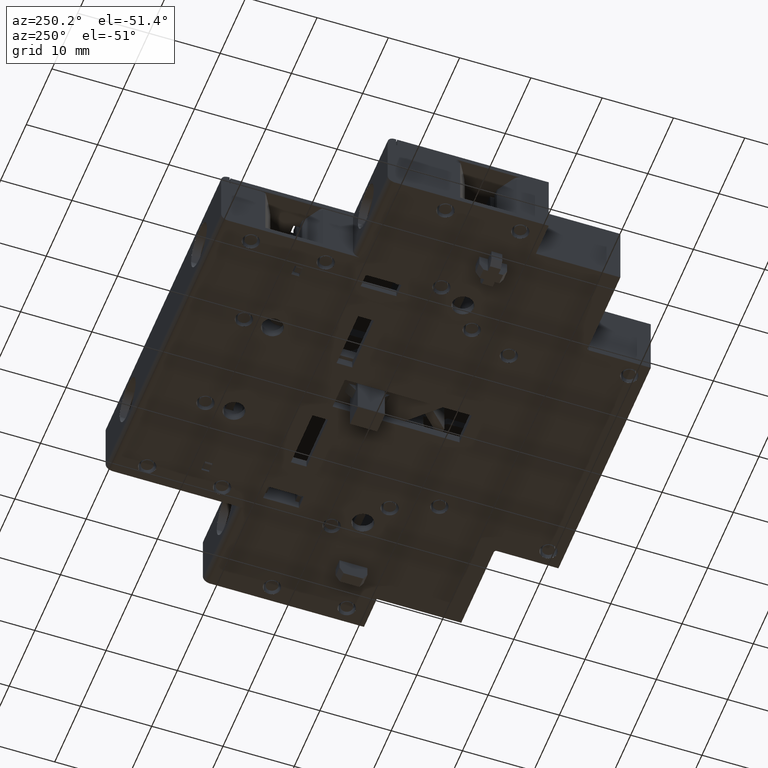
[diagram: clean part render]
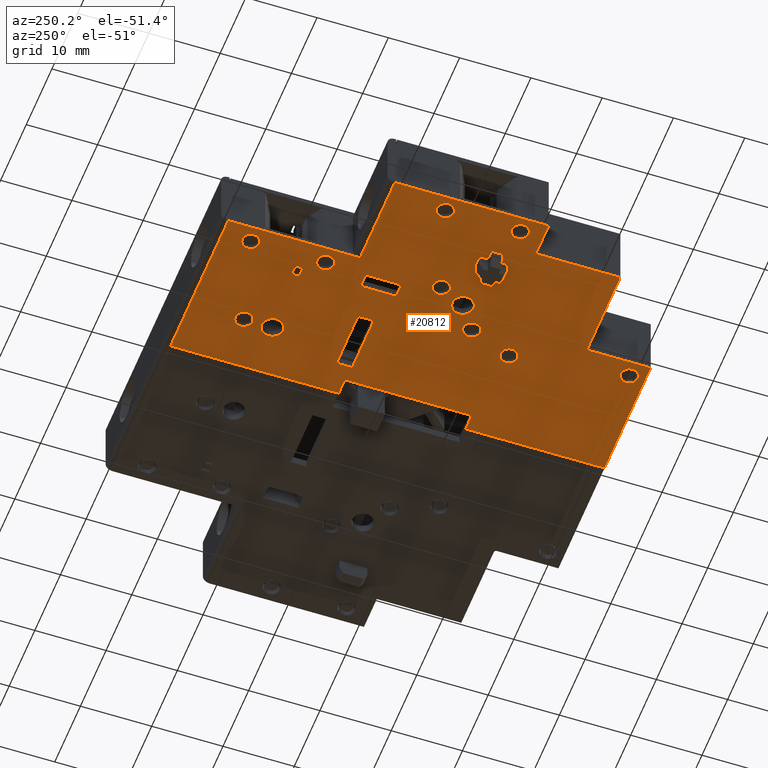
[diagram: same view with one face highlighted and labeled with its STEP entity id]
A machine part, auxiliary view. The second image highlights one B-rep face of the part: STEP entity #20812.
In plain terms, the highlighted planar face has unit normal (0, 0, 1).
Its self-contained STEP definition (entity closure, byte-faithful):
#9272=DIRECTION('',(0.E0,-1.E0,0.E0));
#9273=VECTOR('',#9272,2.16E1);
#9274=CARTESIAN_POINT('',(-2.311889453222E1,5.941970650536E1,4.6E0));
#9275=LINE('',#9274,#9273);
#9276=DIRECTION('',(1.E0,0.E0,0.E0));
#9277=VECTOR('',#9276,5.E0);
#9278=CARTESIAN_POINT('',(-2.311889453222E1,3.781970650536E1,4.6E0));
#9279=LINE('',#9278,#9277);
#9280=CARTESIAN_POINT('',(-5.418894532221E0,2.566970650536E1,4.6E0));
#9281=DIRECTION('',(0.E0,0.E0,-1.E0));
#9282=DIRECTION('',(3.330669073864E-12,1.E0,0.E0));
#9283=AXIS2_PLACEMENT_3D('',#9280,#9281,#9282);
#9285=DIRECTION('',(0.E0,1.E0,0.E0));
#9286=VECTOR('',#9285,1.95E1);
#9287=CARTESIAN_POINT('',(1.288110546778E1,1.701970650536E1,4.6E0));
#9288=LINE('',#9287,#9286);
#9289=DIRECTION('',(0.E0,1.E0,4.366942800545E-12));
#9290=VECTOR('',#9289,2.359998462014E1);
#9291=CARTESIAN_POINT('',(1.288110546778E1,5.431970650536E1,4.6E0));
#9292=LINE('',#9291,#9290);
#9293=CARTESIAN_POINT('',(-8.517706743856E0,7.397121892901E1,4.6E0));
#9294=CARTESIAN_POINT('',(-8.505902374194E0,7.411474803250E1,4.6E0));
#9295=CARTESIAN_POINT('',(-8.450393029536E0,7.437618904207E1,4.6E0));
#9296=CARTESIAN_POINT('',(-8.260730949054E0,7.469209557380E1,4.6E0));
#9297=CARTESIAN_POINT('',(-7.996759547538E0,7.492995729403E1,4.6E0));
#9298=CARTESIAN_POINT('',(-7.683642666329E0,7.508099753615E1,4.6E0));
#9299=CARTESIAN_POINT('',(-7.321782853968E0,7.513883490895E1,4.6E0));
#9300=CARTESIAN_POINT('',(-6.951008153898E0,7.508040155394E1,4.6E0));
#9301=CARTESIAN_POINT('',(-6.631105789637E0,7.492499653397E1,4.6E0));
#9302=CARTESIAN_POINT('',(-6.354166379487E0,7.466083149106E1,4.6E0));
#9303=CARTESIAN_POINT('',(-6.158032698492E0,7.431245875203E1,4.6E0));
#9304=CARTESIAN_POINT('',(-6.118780695691E0,7.405638947797E1,4.6E0));
#9305=CARTESIAN_POINT('',(-6.118894532220E0,7.391970650536E1,4.6E0));
#9307=CARTESIAN_POINT('',(-6.118894532220E0,7.391970650536E1,4.6E0));
#9308=CARTESIAN_POINT('',(-6.118009376165E0,7.378947619976E1,4.6E0));
#9309=CARTESIAN_POINT('',(-6.155765649520E0,7.354178606885E1,4.6E0));
#9310=CARTESIAN_POINT('',(-6.334320975787E0,7.320369523563E1,4.6E0));
#9311=CARTESIAN_POINT('',(-6.624773738767E0,7.291364999865E1,4.6E0));
#9312=CARTESIAN_POINT('',(-6.980183635625E0,7.274740200117E1,4.6E0));
#9313=CARTESIAN_POINT('',(-7.373545927520E0,7.269964243695E1,4.6E0));
#9314=CARTESIAN_POINT('',(-7.751391014556E0,7.277897345930E1,4.6E0));
#9315=CARTESIAN_POINT('',(-8.079586179884E0,7.296750010494E1,4.6E0));
#9316=CARTESIAN_POINT('',(-8.325526202981E0,7.323333731312E1,4.6E0));
#9317=CARTESIAN_POINT('',(-8.488384152740E0,7.357388092709E1,4.6E0));
#9318=CARTESIAN_POINT('',(-8.519604306505E0,7.383249642232E1,4.6E0));
#9319=CARTESIAN_POINT('',(-8.517706743856E0,7.397121892901E1,4.6E0));
#9321=CARTESIAN_POINT('',(4.182293256144E0,7.037121892901E1,4.6E0));
#9322=CARTESIAN_POINT('',(4.194097625806E0,7.051474803250E1,4.6E0));
#9323=CARTESIAN_POINT('',(4.249606970464E0,7.077618904207E1,4.6E0));
#9324=CARTESIAN_POINT('',(4.439269050946E0,7.109209557379E1,4.6E0));
#9325=CARTESIAN_POINT('',(4.703240452462E0,7.132995729403E1,4.6E0));
#9326=CARTESIAN_POINT('',(5.016357333670E0,7.148099753615E1,4.6E0));
#9327=CARTESIAN_POINT('',(5.378217146031E0,7.153883490895E1,4.6E0));
#9328=CARTESIAN_POINT('',(5.748991846101E0,7.148040155395E1,4.6E0));
#9329=CARTESIAN_POINT('',(6.068894210363E0,7.132499653397E1,4.6E0));
#9330=CARTESIAN_POINT('',(6.345833620513E0,7.106083149106E1,4.6E0));
#9331=CARTESIAN_POINT('',(6.541967301508E0,7.071245875203E1,4.6E0));
#9332=CARTESIAN_POINT('',(6.581219304309E0,7.045638947797E1,4.6E0));
#9333=CARTESIAN_POINT('',(6.581105467780E0,7.031970650536E1,4.6E0));
#9335=CARTESIAN_POINT('',(6.581105467780E0,7.031970650536E1,4.6E0));
#9336=CARTESIAN_POINT('',(6.581990623835E0,7.018947619976E1,4.6E0));
#9337=CARTESIAN_POINT('',(6.544234350480E0,6.994178606885E1,4.6E0));
#9338=CARTESIAN_POINT('',(6.365679024213E0,6.960369523563E1,4.6E0));
#9339=CARTESIAN_POINT('',(6.075226261233E0,6.931364999865E1,4.6E0));
#9340=CARTESIAN_POINT('',(5.719816364374E0,6.914740200117E1,4.6E0));
#9341=CARTESIAN_POINT('',(5.326454072479E0,6.909964243695E1,4.6E0));
#9342=CARTESIAN_POINT('',(4.948608985443E0,6.917897345930E1,4.6E0));
#9343=CARTESIAN_POINT('',(4.620413820114E0,6.936750010494E1,4.6E0));
#9344=CARTESIAN_POINT('',(4.374473797018E0,6.963333731312E1,4.6E0));
#9345=CARTESIAN_POINT('',(4.211615847260E0,6.997388092709E1,4.6E0));
#9346=CARTESIAN_POINT('',(4.180395693495E0,7.023249642232E1,4.6E0));
#9347=CARTESIAN_POINT('',(4.182293256144E0,7.037121892901E1,4.6E0));
#9349=CARTESIAN_POINT('',(-8.517706743856E0,6.347121892901E1,4.6E0));
#9350=CARTESIAN_POINT('',(-8.505902374194E0,6.361474803250E1,4.6E0));
#9351=CARTESIAN_POINT('',(-8.450393029536E0,6.387618904207E1,4.6E0));
#9352=CARTESIAN_POINT('',(-8.260730949054E0,6.419209557379E1,4.6E0));
#9353=CARTESIAN_POINT('',(-7.996759547538E0,6.442995729403E1,4.6E0));
#9354=CARTESIAN_POINT('',(-7.683642666330E0,6.458099753615E1,4.6E0));
#9355=CARTESIAN_POINT('',(-7.321782853968E0,6.463883490895E1,4.6E0));
#9356=CARTESIAN_POINT('',(-6.951008153898E0,6.458040155395E1,4.6E0));
#9357=CARTESIAN_POINT('',(-6.631105789637E0,6.442499653397E1,4.6E0));
#9358=CARTESIAN_POINT('',(-6.354166379487E0,6.416083149106E1,4.6E0));
#9359=CARTESIAN_POINT('',(-6.158032698492E0,6.381245875203E1,4.6E0));
#9360=CARTESIAN_POINT('',(-6.118780695691E0,6.355638947797E1,4.6E0));
#9361=CARTESIAN_POINT('',(-6.118894532220E0,6.341970650536E1,4.6E0));
#9363=CARTESIAN_POINT('',(-6.118894532220E0,6.341970650536E1,4.6E0));
#9364=CARTESIAN_POINT('',(-6.118009376165E0,6.328947619976E1,4.6E0));
#9365=CARTESIAN_POINT('',(-6.155765649520E0,6.304178606885E1,4.6E0));
#9366=CARTESIAN_POINT('',(-6.334320975787E0,6.270369523563E1,4.6E0));
#9367=CARTESIAN_POINT('',(-6.624773738767E0,6.241364999865E1,4.6E0));
#9368=CARTESIAN_POINT('',(-6.980183635625E0,6.224740200117E1,4.6E0));
#9369=CARTESIAN_POINT('',(-7.373545927520E0,6.219964243695E1,4.6E0));
#9370=CARTESIAN_POINT('',(-7.751391014555E0,6.227897345930E1,4.6E0));
#9371=CARTESIAN_POINT('',(-8.079586179884E0,6.246750010494E1,4.6E0));
#9372=CARTESIAN_POINT('',(-8.325526202981E0,6.273333731312E1,4.6E0));
#9373=CARTESIAN_POINT('',(-8.488384152740E0,6.307388092709E1,4.6E0));
#9374=CARTESIAN_POINT('',(-8.519604306505E0,6.333249642232E1,4.6E0));
#9375=CARTESIAN_POINT('',(-8.517706743856E0,6.347121892901E1,4.6E0));
#9377=CARTESIAN_POINT('',(-2.211770674386E1,5.157121892901E1,4.6E0));
#9378=CARTESIAN_POINT('',(-2.210590237420E1,5.171474803250E1,4.6E0));
#9379=CARTESIAN_POINT('',(-2.205039302954E1,5.197618904206E1,4.6E0));
#9380=CARTESIAN_POINT('',(-2.186073094905E1,5.229209557380E1,4.6E0));
#9381=CARTESIAN_POINT('',(-2.159675954753E1,5.252995729404E1,4.6E0));
#9382=CARTESIAN_POINT('',(-2.128364266631E1,5.268099753616E1,4.6E0));
#9383=CARTESIAN_POINT('',(-2.092178285396E1,5.273883490895E1,4.6E0));
#9384=CARTESIAN_POINT('',(-2.055100815389E1,5.268040155394E1,4.6E0));
#9385=CARTESIAN_POINT('',(-2.023110578963E1,5.252499653397E1,4.6E0));
#9386=CARTESIAN_POINT('',(-1.995416637949E1,5.226083149106E1,4.6E0));
#9387=CARTESIAN_POINT('',(-1.975803269850E1,5.191245875203E1,4.6E0));
#9388=CARTESIAN_POINT('',(-1.971878069569E1,5.165638947797E1,4.6E0));
#9389=CARTESIAN_POINT('',(-1.971889453222E1,5.151970650536E1,4.6E0));
#9391=CARTESIAN_POINT('',(-1.971889453222E1,5.151970650536E1,4.6E0));
#9392=CARTESIAN_POINT('',(-1.971800937616E1,5.138947619977E1,4.6E0));
#9393=CARTESIAN_POINT('',(-1.975576564952E1,5.114178606886E1,4.6E0));
#9394=CARTESIAN_POINT('',(-1.993432097579E1,5.080369523563E1,4.6E0));
#9395=CARTESIAN_POINT('',(-2.022477373876E1,5.051364999865E1,4.6E0));
#9396=CARTESIAN_POINT('',(-2.058018363562E1,5.034740200118E1,4.6E0));
#9397=CARTESIAN_POINT('',(-2.097354592751E1,5.029964243695E1,4.6E0));
#9398=CARTESIAN_POINT('',(-2.135139101455E1,5.037897345930E1,4.6E0));
#9399=CARTESIAN_POINT('',(-2.167958617988E1,5.056750010493E1,4.6E0));
#9400=CARTESIAN_POINT('',(-2.192552620298E1,5.083333731311E1,4.6E0));
#9401=CARTESIAN_POINT('',(-2.208838415273E1,5.117388092706E1,4.6E0));
#9402=CARTESIAN_POINT('',(-2.211960430651E1,5.143249642230E1,4.6E0));
#9403=CARTESIAN_POINT('',(-2.211770674386E1,5.157121892901E1,4.6E0));
#9405=CARTESIAN_POINT('',(-2.211770674386E1,4.107121892901E1,4.6E0));
#9406=CARTESIAN_POINT('',(-2.210590237420E1,4.121474803250E1,4.6E0));
#9407=CARTESIAN_POINT('',(-2.205039302954E1,4.147618904207E1,4.6E0));
#9408=CARTESIAN_POINT('',(-2.186073094905E1,4.179209557380E1,4.6E0));
#9409=CARTESIAN_POINT('',(-2.159675954752E1,4.202995729404E1,4.6E0));
#9410=CARTESIAN_POINT('',(-2.128364266631E1,4.218099753616E1,4.6E0));
#9411=CARTESIAN_POINT('',(-2.092178285394E1,4.223883490895E1,4.6E0));
#9412=CARTESIAN_POINT('',(-2.055100815386E1,4.218040155393E1,4.6E0));
#9413=CARTESIAN_POINT('',(-2.023110578961E1,4.202499653396E1,4.6E0));
#9414=CARTESIAN_POINT('',(-1.995416637948E1,4.176083149104E1,4.6E0));
#9415=CARTESIAN_POINT('',(-1.975803269850E1,4.141245875203E1,4.6E0));
#9416=CARTESIAN_POINT('',(-1.971878069569E1,4.115638947797E1,4.6E0));
#9417=CARTESIAN_POINT('',(-1.971889453222E1,4.101970650537E1,4.6E0));
#9419=CARTESIAN_POINT('',(-1.971889453222E1,4.101970650537E1,4.6E0));
#9420=CARTESIAN_POINT('',(-1.971800937616E1,4.088947619977E1,4.6E0));
#9421=CARTESIAN_POINT('',(-1.975576564952E1,4.064178606886E1,4.6E0));
#9422=CARTESIAN_POINT('',(-1.993432097579E1,4.030369523563E1,4.6E0));
#9423=CARTESIAN_POINT('',(-2.022477373876E1,4.001364999865E1,4.6E0));
#9424=CARTESIAN_POINT('',(-2.058018363561E1,3.984740200118E1,4.6E0));
#9425=CARTESIAN_POINT('',(-2.097354592751E1,3.979964243695E1,4.6E0));
#9426=CARTESIAN_POINT('',(-2.135139101455E1,3.987897345930E1,4.6E0));
#9427=CARTESIAN_POINT('',(-2.167958617987E1,4.006750010492E1,4.6E0));
#9428=CARTESIAN_POINT('',(-2.192552620297E1,4.033333731310E1,4.6E0));
#9429=CARTESIAN_POINT('',(-2.208838415274E1,4.067388092707E1,4.6E0));
#9430=CARTESIAN_POINT('',(-2.211960430651E1,4.093249642231E1,4.6E0));
#9431=CARTESIAN_POINT('',(-2.211770674386E1,4.107121892901E1,4.6E0));
#9433=CARTESIAN_POINT('',(-9.717706743856E0,4.767121892901E1,4.6E0));
#9434=CARTESIAN_POINT('',(-9.705902374194E0,4.781474803250E1,4.6E0));
#9435=CARTESIAN_POINT('',(-9.650393029535E0,4.807618904207E1,4.6E0));
#9436=CARTESIAN_POINT('',(-9.460730949055E0,4.839209557379E1,4.6E0));
#9437=CARTESIAN_POINT('',(-9.196759547540E0,4.862995729403E1,4.6E0));
#9438=CARTESIAN_POINT('',(-8.883642666332E0,4.878099753615E1,4.6E0));
#9439=CARTESIAN_POINT('',(-8.521782853971E0,4.883883490895E1,4.6E0));
#9440=CARTESIAN_POINT('',(-8.151008153900E0,4.878040155395E1,4.6E0));
#9441=CARTESIAN_POINT('',(-7.831105789638E0,4.862499653397E1,4.6E0));
#9442=CARTESIAN_POINT('',(-7.554166379488E0,4.836083149106E1,4.6E0));
#9443=CARTESIAN_POINT('',(-7.358032698492E0,4.801245875203E1,4.6E0));
#9444=CARTESIAN_POINT('',(-7.318780695691E0,4.775638947797E1,4.6E0));
#9445=CARTESIAN_POINT('',(-7.318894532220E0,4.761970650536E1,4.6E0));
#9447=CARTESIAN_POINT('',(-7.318894532220E0,4.761970650536E1,4.6E0));
#9448=CARTESIAN_POINT('',(-7.318009376165E0,4.748947619976E1,4.6E0));
#9449=CARTESIAN_POINT('',(-7.355765649519E0,4.724178606885E1,4.6E0));
#9450=CARTESIAN_POINT('',(-7.534320975786E0,4.690369523563E1,4.6E0));
#9451=CARTESIAN_POINT('',(-7.824773738766E0,4.661364999865E1,4.6E0));
#9452=CARTESIAN_POINT('',(-8.180183635625E0,4.644740200117E1,4.6E0));
#9453=CARTESIAN_POINT('',(-8.573545927519E0,4.639964243695E1,4.6E0));
#9454=CARTESIAN_POINT('',(-8.951391014555E0,4.647897345930E1,4.6E0));
#9455=CARTESIAN_POINT('',(-9.279586179884E0,4.666750010494E1,4.6E0));
#9456=CARTESIAN_POINT('',(-9.525526202981E0,4.693333731312E1,4.6E0));
#9457=CARTESIAN_POINT('',(-9.688384152740E0,4.727388092709E1,4.6E0));
#9458=CARTESIAN_POINT('',(-9.719604306505E0,4.753249642232E1,4.6E0));
#9459=CARTESIAN_POINT('',(-9.717706743856E0,4.767121892901E1,4.6E0));
#9461=CARTESIAN_POINT('',(-4.317706743856E0,4.147121892901E1,4.6E0));
#9462=CARTESIAN_POINT('',(-4.305902374194E0,4.161474803250E1,4.6E0));
#9463=CARTESIAN_POINT('',(-4.250393029535E0,4.187618904207E1,4.6E0));
#9464=CARTESIAN_POINT('',(-4.060730949053E0,4.219209557380E1,4.6E0));
#9465=CARTESIAN_POINT('',(-3.796759547537E0,4.242995729403E1,4.6E0));
#9466=CARTESIAN_POINT('',(-3.483642666329E0,4.258099753615E1,4.6E0));
#9467=CARTESIAN_POINT('',(-3.121782853967E0,4.263883490895E1,4.6E0));
#9468=CARTESIAN_POINT('',(-2.751008153896E0,4.258040155394E1,4.6E0));
#9469=CARTESIAN_POINT('',(-2.431105789635E0,4.242499653397E1,4.6E0));
#9470=CARTESIAN_POINT('',(-2.154166379486E0,4.216083149106E1,4.6E0));
#9471=CARTESIAN_POINT('',(-1.958032698492E0,4.181245875203E1,4.6E0));
#9472=CARTESIAN_POINT('',(-1.918780695691E0,4.155638947797E1,4.6E0));
#9473=CARTESIAN_POINT('',(-1.918894532220E0,4.141970650536E1,4.6E0));
#9475=CARTESIAN_POINT('',(-1.918894532220E0,4.141970650536E1,4.6E0));
#9476=CARTESIAN_POINT('',(-1.918009376165E0,4.128947619976E1,4.6E0));
#9477=CARTESIAN_POINT('',(-1.955765649519E0,4.104178606885E1,4.6E0));
#9478=CARTESIAN_POINT('',(-2.134320975786E0,4.070369523563E1,4.6E0));
#9479=CARTESIAN_POINT('',(-2.424773738768E0,4.041364999865E1,4.6E0));
#9480=CARTESIAN_POINT('',(-2.780183635626E0,4.024740200117E1,4.6E0));
#9481=CARTESIAN_POINT('',(-3.173545927522E0,4.019964243695E1,4.6E0));
#9482=CARTESIAN_POINT('',(-3.551391014558E0,4.027897345930E1,4.6E0));
#9483=CARTESIAN_POINT('',(-3.879586179887E0,4.046750010494E1,4.6E0));
#9484=CARTESIAN_POINT('',(-4.125526202984E0,4.073333731312E1,4.6E0));
#9485=CARTESIAN_POINT('',(-4.288384152742E0,4.107388092710E1,4.6E0));
#9486=CARTESIAN_POINT('',(-4.319604306506E0,4.133249642232E1,4.6E0));
#9487=CARTESIAN_POINT('',(-4.317706743856E0,4.147121892901E1,4.6E0));
#9489=CARTESIAN_POINT('',(-1.867706743856E0,3.537121892901E1,4.6E0));
#9490=CARTESIAN_POINT('',(-1.855902374194E0,3.551474803250E1,4.6E0));
#9491=CARTESIAN_POINT('',(-1.800393029535E0,3.577618904207E1,4.6E0));
#9492=CARTESIAN_POINT('',(-1.610730949053E0,3.609209557380E1,4.6E0));
#9493=CARTESIAN_POINT('',(-1.346759547536E0,3.632995729403E1,4.6E0));
#9494=CARTESIAN_POINT('',(-1.033642666328E0,3.648099753615E1,4.6E0));
#9495=CARTESIAN_POINT('',(-6.717828539659E-1,3.653883490895E1,4.6E0));
#9496=CARTESIAN_POINT('',(-3.010081538954E-1,3.648040155394E1,4.6E0));
#9497=CARTESIAN_POINT('',(1.889421036537E-2,3.632499653397E1,4.6E0));
#9498=CARTESIAN_POINT('',(2.958336205152E-1,3.606083149106E1,4.6E0));
#9499=CARTESIAN_POINT('',(4.919673015084E-1,3.571245875203E1,4.6E0));
#9500=CARTESIAN_POINT('',(5.312193043093E-1,3.545638947796E1,4.6E0));
#9501=CARTESIAN_POINT('',(5.311054677797E-1,3.531970650536E1,4.6E0));
#9503=CARTESIAN_POINT('',(5.311054677797E-1,3.531970650536E1,4.6E0));
#9504=CARTESIAN_POINT('',(5.319906238349E-1,3.518947619976E1,4.6E0));
#9505=CARTESIAN_POINT('',(4.942343504803E-1,3.494178606885E1,4.6E0));
#9506=CARTESIAN_POINT('',(3.156790242132E-1,3.460369523563E1,4.6E0));
#9507=CARTESIAN_POINT('',(2.522626123261E-2,3.431364999865E1,4.6E0));
#9508=CARTESIAN_POINT('',(-3.301836356263E-1,3.414740200117E1,4.6E0));
#9509=CARTESIAN_POINT('',(-7.235459275218E-1,3.409964243695E1,4.6E0));
#9510=CARTESIAN_POINT('',(-1.101391014558E0,3.417897345930E1,4.6E0));
#9511=CARTESIAN_POINT('',(-1.429586179886E0,3.436750010494E1,4.6E0));
#9512=CARTESIAN_POINT('',(-1.675526202983E0,3.463333731312E1,4.6E0));
#9513=CARTESIAN_POINT('',(-1.838384152740E0,3.497388092709E1,4.6E0));
#9514=CARTESIAN_POINT('',(-1.869604306505E0,3.523249642232E1,4.6E0));
#9515=CARTESIAN_POINT('',(-1.867706743856E0,3.537121892901E1,4.6E0));
#9517=CARTESIAN_POINT('',(-4.067706743856E0,1.927121892901E1,4.6E0));
#9518=CARTESIAN_POINT('',(-4.055902374195E0,1.941474803250E1,4.6E0));
#9519=CARTESIAN_POINT('',(-4.000393029536E0,1.967618904207E1,4.6E0));
#9520=CARTESIAN_POINT('',(-3.810730949046E0,1.999209557381E1,4.6E0));
#9521=CARTESIAN_POINT('',(-3.546759547520E0,2.022995729404E1,4.6E0));
#9522=CARTESIAN_POINT('',(-3.233642666324E0,2.038099753616E1,4.6E0));
#9523=CARTESIAN_POINT('',(-2.871782853971E0,2.043883490895E1,4.6E0));
#9524=CARTESIAN_POINT('',(-2.501008153888E0,2.038040155394E1,4.6E0));
#9525=CARTESIAN_POINT('',(-2.181105789617E0,2.022499653397E1,4.6E0));
#9526=CARTESIAN_POINT('',(-1.904166379482E0,1.996083149105E1,4.6E0));
#9527=CARTESIAN_POINT('',(-1.708032698493E0,1.961245875203E1,4.6E0));
#9528=CARTESIAN_POINT('',(-1.668780695692E0,1.935638947797E1,4.6E0));
#9529=CARTESIAN_POINT('',(-1.668894532220E0,1.921970650537E1,4.6E0));
#9531=CARTESIAN_POINT('',(-1.668894532220E0,1.921970650537E1,4.6E0));
#9532=CARTESIAN_POINT('',(-1.668009376165E0,1.908947619977E1,4.6E0));
#9533=CARTESIAN_POINT('',(-1.705765649520E0,1.884178606884E1,4.6E0));
#9534=CARTESIAN_POINT('',(-1.884320975788E0,1.850369523563E1,4.6E0));
#9535=CARTESIAN_POINT('',(-2.174773738768E0,1.821364999865E1,4.6E0));
#9536=CARTESIAN_POINT('',(-2.530183635618E0,1.804740200118E1,4.6E0));
#9537=CARTESIAN_POINT('',(-2.923545927516E0,1.799964243695E1,4.6E0));
#9538=CARTESIAN_POINT('',(-3.301391014559E0,1.807897345930E1,4.6E0));
#9539=CARTESIAN_POINT('',(-3.629586179880E0,1.826750010493E1,4.6E0));
#9540=CARTESIAN_POINT('',(-3.875526202979E0,1.853333731312E1,4.6E0));
#9541=CARTESIAN_POINT('',(-4.038384152741E0,1.887388092710E1,4.6E0));
#9542=CARTESIAN_POINT('',(-4.069604306506E0,1.913249642232E1,4.6E0));
#9543=CARTESIAN_POINT('',(-4.067706743856E0,1.927121892901E1,4.6E0));
#9545=CARTESIAN_POINT('',(-6.555419134093E0,4.541740328696E1,4.6E0));
#9546=CARTESIAN_POINT('',(-6.396383424498E0,4.540594485329E1,4.6E0));
#9547=CARTESIAN_POINT('',(-6.103010345844E0,4.534975807453E1,4.6E0));
#9548=CARTESIAN_POINT('',(-5.731720762096E0,4.515189257940E1,4.6E0));
#9549=CARTESIAN_POINT('',(-5.445176174710E0,4.488176853557E1,4.6E0));
#9550=CARTESIAN_POINT('',(-5.236474763400E0,4.454264983910E1,4.6E0));
#9551=CARTESIAN_POINT('',(-5.118406445986E0,4.415223734790E1,4.6E0));
#9552=CARTESIAN_POINT('',(-5.112053134410E0,4.373144108433E1,4.6E0));
#9553=CARTESIAN_POINT('',(-5.220801682942E0,4.332795311801E1,4.6E0));
#9554=CARTESIAN_POINT('',(-5.426494687291E0,4.297954913852E1,4.6E0));
#9555=CARTESIAN_POINT('',(-5.755667264558E0,4.267097226794E1,4.6E0));
#9556=CARTESIAN_POINT('',(-6.156660482225E0,4.246357972074E1,4.6E0));
#9557=CARTESIAN_POINT('',(-6.458339772053E0,4.242005681092E1,4.6E0));
#9558=CARTESIAN_POINT('',(-6.618894532220E0,4.241970650536E1,4.6E0));
#9560=CARTESIAN_POINT('',(-6.618894532220E0,4.241970650536E1,4.6E0));
#9561=CARTESIAN_POINT('',(-6.767364844709E0,4.241901569687E1,4.6E0));
#9562=CARTESIAN_POINT('',(-7.051372825805E0,4.245858929205E1,4.6E0));
#9563=CARTESIAN_POINT('',(-7.434220751954E0,4.263852655510E1,4.6E0));
#9564=CARTESIAN_POINT('',(-7.787002974159E0,4.294590698717E1,4.6E0));
#9565=CARTESIAN_POINT('',(-8.020355228908E0,4.332833315090E1,4.6E0));
#9566=CARTESIAN_POINT('',(-8.129708427288E0,4.375380695695E1,4.6E0));
#9567=CARTESIAN_POINT('',(-8.115283101276E0,4.419686355985E1,4.6E0));
#9568=CARTESIAN_POINT('',(-7.975419835222E0,4.460727750204E1,4.6E0));
#9569=CARTESIAN_POINT('',(-7.730442239118E0,4.495445108343E1,4.6E0));
#9570=CARTESIAN_POINT('',(-7.404038508073E0,4.522016578161E1,4.6E0));
#9571=CARTESIAN_POINT('',(-7.000481788866E0,4.539097013686E1,4.6E0));
#9572=CARTESIAN_POINT('',(-6.709112180994E0,4.542138066203E1,4.6E0));
#9573=CARTESIAN_POINT('',(-6.555419134093E0,4.541740328696E1,4.6E0));
#9575=CARTESIAN_POINT('',(5.444580865907E0,6.781740328696E1,4.6E0));
#9576=CARTESIAN_POINT('',(5.603616575502E0,6.780594485329E1,4.6E0));
#9577=CARTESIAN_POINT('',(5.896989654154E0,6.774975807453E1,4.6E0));
#9578=CARTESIAN_POINT('',(6.268279237902E0,6.755189257940E1,4.6E0));
#9579=CARTESIAN_POINT('',(6.554823825289E0,6.728176853557E1,4.6E0));
#9580=CARTESIAN_POINT('',(6.763525236598E0,6.694264983910E1,4.6E0));
#9581=CARTESIAN_POINT('',(6.881593554013E0,6.655223734790E1,4.6E0));
#9582=CARTESIAN_POINT('',(6.887946865591E0,6.613144108433E1,4.6E0));
#9583=CARTESIAN_POINT('',(6.779198317058E0,6.572795311801E1,4.6E0));
#9584=CARTESIAN_POINT('',(6.573505312711E0,6.537954913852E1,4.6E0));
#9585=CARTESIAN_POINT('',(6.244332735443E0,6.507097226794E1,4.6E0));
#9586=CARTESIAN_POINT('',(5.843339517774E0,6.486357972074E1,4.6E0));
#9587=CARTESIAN_POINT('',(5.541660227946E0,6.482005681092E1,4.6E0));
#9588=CARTESIAN_POINT('',(5.381105467780E0,6.481970650536E1,4.6E0));
#9590=CARTESIAN_POINT('',(5.381105467780E0,6.481970650536E1,4.6E0));
#9591=CARTESIAN_POINT('',(5.232635155291E0,6.481901569687E1,4.6E0));
#9592=CARTESIAN_POINT('',(4.948627174194E0,6.485858929205E1,4.6E0));
#9593=CARTESIAN_POINT('',(4.565779248046E0,6.503852655510E1,4.6E0));
#9594=CARTESIAN_POINT('',(4.212997025841E0,6.534590698717E1,4.6E0));
#9595=CARTESIAN_POINT('',(3.979644771092E0,6.572833315090E1,4.6E0));
#9596=CARTESIAN_POINT('',(3.870291572712E0,6.615380695695E1,4.6E0));
#9597=CARTESIAN_POINT('',(3.884716898724E0,6.659686355984E1,4.6E0));
#9598=CARTESIAN_POINT('',(4.024580164778E0,6.700727750204E1,4.6E0));
#9599=CARTESIAN_POINT('',(4.269557760882E0,6.735445108343E1,4.6E0));
#9600=CARTESIAN_POINT('',(4.595961491928E0,6.762016578162E1,4.6E0));
#9601=CARTESIAN_POINT('',(4.999518211135E0,6.779097013686E1,4.6E0));
#9602=CARTESIAN_POINT('',(5.290887819007E0,6.782138066203E1,4.6E0));
#9603=CARTESIAN_POINT('',(5.444580865907E0,6.781740328696E1,4.6E0));
#9620=DIRECTION('',(1.795561336864E-14,1.E0,1.120833555359E-12));
#9621=VECTOR('',#9620,1.849999340863E1);
#9622=CARTESIAN_POINT('',(-9.618894532220E0,5.941970650536E1,4.6E0));
#9623=LINE('',#9622,#9621);
#9624=DIRECTION('',(9.999999999999E-1,-3.905995419649E-7,3.658860868603E-12));
#9625=VECTOR('',#9624,2.25E1);
#9626=CARTESIAN_POINT('',(-9.618894532220E0,7.791969991399E1,4.600000000021E0));
#9627=LINE('',#9626,#9625);
#9956=DIRECTION('',(0.E0,-1.E0,0.E0));
#9957=VECTOR('',#9956,1.1E0);
#9958=CARTESIAN_POINT('',(-5.418894532220E0,6.701970650536E1,4.6E0));
#9959=LINE('',#9958,#9957);
#9964=DIRECTION('',(1.E0,0.E0,0.E0));
#9965=VECTOR('',#9964,1.5E0);
#9966=CARTESIAN_POINT('',(-5.418894532220E0,6.591970650536E1,4.6E0));
#9967=LINE('',#9966,#9965);
#10601=DIRECTION('',(-1.E0,0.E0,0.E0));
#10602=VECTOR('',#10601,2.E0);
#10603=CARTESIAN_POINT('',(-5.118894532220E0,5.771970650536E1,4.6E0));
#10604=LINE('',#10603,#10602);
#10613=DIRECTION('',(0.E0,1.E0,0.E0));
#10614=VECTOR('',#10613,5.E0);
#10615=CARTESIAN_POINT('',(-5.118894532220E0,5.271970650536E1,4.6E0));
#10616=LINE('',#10615,#10614);
#10625=DIRECTION('',(1.E0,0.E0,0.E0));
#10626=VECTOR('',#10625,2.E0);
#10627=CARTESIAN_POINT('',(-7.118894532220E0,5.271970650536E1,4.6E0));
#10628=LINE('',#10627,#10626);
#10641=DIRECTION('',(0.E0,-1.E0,0.E0));
#10642=VECTOR('',#10641,5.E0);
#10643=CARTESIAN_POINT('',(-7.118894532220E0,5.771970650536E1,4.6E0));
#10644=LINE('',#10643,#10642);
#11136=DIRECTION('',(-1.E0,0.E0,0.E0));
#11137=VECTOR('',#11136,2.4E0);
#11138=CARTESIAN_POINT('',(1.288110546778E1,5.431970650536E1,4.6E0));
#11139=LINE('',#11138,#11137);
#11180=DIRECTION('',(1.E0,0.E0,0.E0));
#11181=VECTOR('',#11180,2.4E0);
#11182=CARTESIAN_POINT('',(1.048110546778E1,3.651970650536E1,4.6E0));
#11183=LINE('',#11182,#11181);
#11196=DIRECTION('',(0.E0,-1.E0,0.E0));
#11197=VECTOR('',#11196,1.78E1);
#11198=CARTESIAN_POINT('',(1.048110546778E1,5.431970650536E1,4.6E0));
#11199=LINE('',#11198,#11197);
#11883=DIRECTION('',(1.E0,0.E0,0.E0));
#11884=VECTOR('',#11883,8.4E0);
#11885=CARTESIAN_POINT('',(-2.188945322202E-1,5.411970650536E1,4.6E0));
#11886=LINE('',#11885,#11884);
#11891=DIRECTION('',(0.E0,-1.E0,0.E0));
#11892=VECTOR('',#11891,2.2E0);
#11893=CARTESIAN_POINT('',(-2.188945322202E-1,5.631970650536E1,4.6E0));
#11894=LINE('',#11893,#11892);
#11903=DIRECTION('',(-1.E0,0.E0,0.E0));
#11904=VECTOR('',#11903,8.4E0);
#11905=CARTESIAN_POINT('',(8.181105467780E0,5.631970650536E1,4.6E0));
#11906=LINE('',#11905,#11904);
#11919=DIRECTION('',(0.E0,1.E0,0.E0));
#11920=VECTOR('',#11919,2.2E0);
#11921=CARTESIAN_POINT('',(8.181105467780E0,5.411970650536E1,4.6E0));
#11922=LINE('',#11921,#11920);
#12298=DIRECTION('',(1.E0,1.421085471520E-14,0.E0));
#12299=VECTOR('',#12298,1.35E1);
#12300=CARTESIAN_POINT('',(-2.311889453222E1,5.941970650536E1,4.6E0));
#12301=LINE('',#12300,#12299);
#12817=DIRECTION('',(0.E0,1.E0,0.E0));
#12818=VECTOR('',#12817,1.1E0);
#12819=CARTESIAN_POINT('',(-3.918894532220E0,6.591970650536E1,4.6E0));
#12820=LINE('',#12819,#12818);
#12829=DIRECTION('',(-1.E0,0.E0,0.E0));
#12830=VECTOR('',#12829,1.5E0);
#12831=CARTESIAN_POINT('',(-3.918894532220E0,6.701970650536E1,4.6E0));
#12832=LINE('',#12831,#12830);
#13684=DIRECTION('',(0.E0,1.E0,0.E0));
#13685=VECTOR('',#13684,1.185E1);
#13686=CARTESIAN_POINT('',(-1.811889453222E1,2.596970650536E1,4.6E0));
#13687=LINE('',#13686,#13685);
#13696=DIRECTION('',(-1.E0,-2.657541728237E-14,0.E0));
#13697=VECTOR('',#13696,1.27E1);
#13698=CARTESIAN_POINT('',(-5.418894532220E0,2.596970650536E1,4.6E0));
#13699=LINE('',#13698,#13697);
#13720=DIRECTION('',(-3.090655541384E-14,1.E0,0.E0));
#13721=VECTOR('',#13720,8.650000000001E0);
#13722=CARTESIAN_POINT('',(-5.118894532220E0,1.701970650536E1,4.6E0));
#13723=LINE('',#13722,#13721);
#13736=DIRECTION('',(-1.E0,0.E0,0.E0));
#13737=VECTOR('',#13736,1.8E1);
#13738=CARTESIAN_POINT('',(1.288110546778E1,1.701970650536E1,4.6E0));
#13739=LINE('',#13738,#13737);
#13767=DIRECTION('',(-1.E0,0.E0,0.E0));
#13768=VECTOR('',#13767,1.4E0);
#13769=CARTESIAN_POINT('',(-1.221889453222E1,4.346970650536E1,4.6E0));
#13770=LINE('',#13769,#13768);
#13775=DIRECTION('',(1.E0,0.E0,0.E0));
#13776=VECTOR('',#13775,1.4E0);
#13777=CARTESIAN_POINT('',(-1.361889453222E1,4.196970650536E1,4.6E0));
#13778=LINE('',#13777,#13776);
#13799=DIRECTION('',(0.E0,1.E0,0.E0));
#13800=VECTOR('',#13799,1.2E0);
#13801=CARTESIAN_POINT('',(-1.361889453222E1,4.076970650536E1,4.6E0));
#13802=LINE('',#13801,#13800);
#13815=DIRECTION('',(1.E0,0.E0,0.E0));
#13816=VECTOR('',#13815,1.5E0);
#13817=CARTESIAN_POINT('',(-1.511889453222E1,4.076970650536E1,4.6E0));
#13818=LINE('',#13817,#13816);
#13831=DIRECTION('',(0.E0,-1.E0,0.E0));
#13832=VECTOR('',#13831,1.2E0);
#13833=CARTESIAN_POINT('',(-1.511889453222E1,4.196970650536E1,4.6E0));
#13834=LINE('',#13833,#13832);
#13843=DIRECTION('',(1.E0,0.E0,0.E0));
#13844=VECTOR('',#13843,1.4E0);
#13845=CARTESIAN_POINT('',(-1.651889453222E1,4.196970650536E1,4.6E0));
#13846=LINE('',#13845,#13844);
#13867=DIRECTION('',(-1.E0,0.E0,0.E0));
#13868=VECTOR('',#13867,1.4E0);
#13869=CARTESIAN_POINT('',(-1.511889453222E1,4.346970650536E1,4.6E0));
#13870=LINE('',#13869,#13868);
#13875=DIRECTION('',(0.E0,-1.E0,0.E0));
#13876=VECTOR('',#13875,1.2E0);
#13877=CARTESIAN_POINT('',(-1.511889453222E1,4.466970650536E1,4.6E0));
#13878=LINE('',#13877,#13876);
#13903=DIRECTION('',(0.E0,1.E0,0.E0));
#13904=VECTOR('',#13903,1.2E0);
#13905=CARTESIAN_POINT('',(-1.361889453222E1,4.346970650536E1,4.6E0));
#13906=LINE('',#13905,#13904);
#13915=DIRECTION('',(-1.E0,0.E0,0.E0));
#13916=VECTOR('',#13915,1.5E0);
#13917=CARTESIAN_POINT('',(-1.361889453222E1,4.466970650536E1,4.6E0));
#13918=LINE('',#13917,#13916);
#13931=DIRECTION('',(0.E0,-1.E0,0.E0));
#13932=VECTOR('',#13931,1.5E0);
#13933=CARTESIAN_POINT('',(-1.651889453222E1,4.346970650536E1,4.6E0));
#13934=LINE('',#13933,#13932);
#13947=DIRECTION('',(0.E0,1.E0,0.E0));
#13948=VECTOR('',#13947,1.5E0);
#13949=CARTESIAN_POINT('',(-1.221889453222E1,4.196970650536E1,4.6E0));
#13950=LINE('',#13949,#13948);
#15482=VERTEX_POINT('',#9293);
#15483=VERTEX_POINT('',#9305);
#15484=VERTEX_POINT('',#9321);
#15485=VERTEX_POINT('',#9333);
#15486=VERTEX_POINT('',#9349);
#15487=VERTEX_POINT('',#9361);
#15488=VERTEX_POINT('',#9377);
#15489=VERTEX_POINT('',#9389);
#15490=VERTEX_POINT('',#9405);
#15491=VERTEX_POINT('',#9417);
#15492=VERTEX_POINT('',#9433);
#15493=VERTEX_POINT('',#9445);
#15494=VERTEX_POINT('',#9461);
#15495=VERTEX_POINT('',#9473);
#15496=VERTEX_POINT('',#9489);
#15497=VERTEX_POINT('',#9501);
#15498=VERTEX_POINT('',#9517);
#15499=VERTEX_POINT('',#9529);
#15500=VERTEX_POINT('',#9545);
#15501=VERTEX_POINT('',#9558);
#15502=VERTEX_POINT('',#9575);
#15503=VERTEX_POINT('',#9588);
#15625=CARTESIAN_POINT('',(1.288110546778E1,5.431970650536E1,4.6E0));
#15627=VERTEX_POINT('',#15625);
#15630=CARTESIAN_POINT('',(1.288110546778E1,3.651970650536E1,4.6E0));
#15631=VERTEX_POINT('',#15630);
#16284=CARTESIAN_POINT('',(1.288110546778E1,1.701970650536E1,4.6E0));
#16285=VERTEX_POINT('',#16284);
#16492=CARTESIAN_POINT('',(-2.311889453222E1,3.781970650536E1,4.6E0));
#16493=VERTEX_POINT('',#16492);
#16494=CARTESIAN_POINT('',(-2.311889453222E1,5.941970650536E1,4.6E0));
#16496=VERTEX_POINT('',#16494);
#16508=CARTESIAN_POINT('',(-9.618894532220E0,5.941970650536E1,4.6E0));
#16509=CARTESIAN_POINT('',(-9.618894532220E0,7.791969991399E1,
4.600000000021E0));
#16510=VERTEX_POINT('',#16508);
#16511=VERTEX_POINT('',#16509);
#16512=CARTESIAN_POINT('',(-1.811889453222E1,3.781970650536E1,4.6E0));
#16513=VERTEX_POINT('',#16512);
#16514=CARTESIAN_POINT('',(-5.418894532220E0,2.596970650536E1,4.6E0));
#16515=CARTESIAN_POINT('',(-5.118894532220E0,2.566970650536E1,4.6E0));
#16516=VERTEX_POINT('',#16514);
#16517=VERTEX_POINT('',#16515);
#16518=CARTESIAN_POINT('',(1.048110546778E1,3.651970650536E1,4.6E0));
#16519=VERTEX_POINT('',#16518);
#16520=CARTESIAN_POINT('',(1.048110546778E1,5.431970650536E1,4.6E0));
#16521=VERTEX_POINT('',#16520);
#16522=CARTESIAN_POINT('',(1.288110546778E1,7.791969112550E1,4.600000000103E0));
#16523=VERTEX_POINT('',#16522);
#16524=CARTESIAN_POINT('',(-7.118894532220E0,5.271970650536E1,4.6E0));
#16525=CARTESIAN_POINT('',(-5.118894532220E0,5.271970650536E1,4.6E0));
#16526=VERTEX_POINT('',#16524);
#16527=VERTEX_POINT('',#16525);
#16528=CARTESIAN_POINT('',(-7.118894532220E0,5.771970650536E1,4.6E0));
#16529=VERTEX_POINT('',#16528);
#16530=CARTESIAN_POINT('',(-5.118894532220E0,5.771970650536E1,4.6E0));
#16531=VERTEX_POINT('',#16530);
#16532=CARTESIAN_POINT('',(8.181105467780E0,5.411970650536E1,4.6E0));
#16533=CARTESIAN_POINT('',(8.181105467780E0,5.631970650536E1,4.6E0));
#16534=VERTEX_POINT('',#16532);
#16535=VERTEX_POINT('',#16533);
#16536=CARTESIAN_POINT('',(-2.188945322202E-1,5.411970650536E1,4.6E0));
#16537=VERTEX_POINT('',#16536);
#16538=CARTESIAN_POINT('',(-2.188945322202E-1,5.631970650536E1,4.6E0));
#16539=VERTEX_POINT('',#16538);
#16540=CARTESIAN_POINT('',(-5.418894532220E0,6.591970650536E1,4.6E0));
#16541=CARTESIAN_POINT('',(-3.918894532220E0,6.591970650536E1,4.6E0));
#16542=VERTEX_POINT('',#16540);
#16543=VERTEX_POINT('',#16541);
#16544=CARTESIAN_POINT('',(-5.418894532220E0,6.701970650536E1,4.6E0));
#16545=VERTEX_POINT('',#16544);
#16546=CARTESIAN_POINT('',(-3.918894532220E0,6.701970650536E1,4.6E0));
#16547=VERTEX_POINT('',#16546);
#16548=CARTESIAN_POINT('',(-1.221889453222E1,4.346970650536E1,4.6E0));
#16549=CARTESIAN_POINT('',(-1.361889453222E1,4.346970650536E1,4.6E0));
#16550=VERTEX_POINT('',#16548);
#16551=VERTEX_POINT('',#16549);
#16552=CARTESIAN_POINT('',(-1.221889453222E1,4.196970650536E1,4.6E0));
#16553=VERTEX_POINT('',#16552);
#16554=CARTESIAN_POINT('',(-1.361889453222E1,4.196970650536E1,4.6E0));
#16555=VERTEX_POINT('',#16554);
#16556=CARTESIAN_POINT('',(-1.361889453222E1,4.076970650536E1,4.6E0));
#16557=VERTEX_POINT('',#16556);
#16558=CARTESIAN_POINT('',(-1.511889453222E1,4.076970650536E1,4.6E0));
#16559=VERTEX_POINT('',#16558);
#16560=CARTESIAN_POINT('',(-1.511889453222E1,4.196970650536E1,4.6E0));
#16561=VERTEX_POINT('',#16560);
#16562=CARTESIAN_POINT('',(-1.651889453222E1,4.196970650536E1,4.6E0));
#16563=VERTEX_POINT('',#16562);
#16564=CARTESIAN_POINT('',(-1.651889453222E1,4.346970650536E1,4.6E0));
#16565=VERTEX_POINT('',#16564);
#16566=CARTESIAN_POINT('',(-1.511889453222E1,4.346970650536E1,4.6E0));
#16567=VERTEX_POINT('',#16566);
#16568=CARTESIAN_POINT('',(-1.511889453222E1,4.466970650536E1,4.6E0));
#16569=VERTEX_POINT('',#16568);
#16570=CARTESIAN_POINT('',(-1.361889453222E1,4.466970650536E1,4.6E0));
#16571=VERTEX_POINT('',#16570);
#17494=CARTESIAN_POINT('',(-1.811889453222E1,2.596970650536E1,4.6E0));
#17495=VERTEX_POINT('',#17494);
#17496=CARTESIAN_POINT('',(-5.118894532220E0,1.701970650536E1,4.6E0));
#17497=VERTEX_POINT('',#17496);
#20657=CARTESIAN_POINT('',(-5.118894532220E0,4.746970211112E1,4.6E0));
#20658=DIRECTION('',(0.E0,0.E0,1.E0));
#20659=DIRECTION('',(1.E0,0.E0,0.E0));
#20660=AXIS2_PLACEMENT_3D('',#20657,#20658,#20659);
#20661=PLANE('',#20660);
#20663=ORIENTED_EDGE('',*,*,#20662,.F.);
#20665=ORIENTED_EDGE('',*,*,#20664,.F.);
#20666=ORIENTED_EDGE('',*,*,#20611,.T.);
#20667=ORIENTED_EDGE('',*,*,#20648,.T.);
#20669=ORIENTED_EDGE('',*,*,#20668,.F.);
#20671=ORIENTED_EDGE('',*,*,#20670,.F.);
#20673=ORIENTED_EDGE('',*,*,#20672,.T.);
#20675=ORIENTED_EDGE('',*,*,#20674,.F.);
#20677=ORIENTED_EDGE('',*,*,#20676,.F.);
#20678=ORIENTED_EDGE('',*,*,#17885,.T.);
#20680=ORIENTED_EDGE('',*,*,#20679,.F.);
#20682=ORIENTED_EDGE('',*,*,#20681,.F.);
#20684=ORIENTED_EDGE('',*,*,#20683,.F.);
#20685=ORIENTED_EDGE('',*,*,#17877,.T.);
#20687=ORIENTED_EDGE('',*,*,#20686,.F.);
#20688=EDGE_LOOP('',(#20663,#20665,#20666,#20667,#20669,#20671,#20673,#20675,
#20677,#20678,#20680,#20682,#20684,#20685,#20687));
#20689=FACE_OUTER_BOUND('',#20688,.F.);
#20691=ORIENTED_EDGE('',*,*,#20690,.F.);
#20693=ORIENTED_EDGE('',*,*,#20692,.F.);
#20695=ORIENTED_EDGE('',*,*,#20694,.F.);
#20697=ORIENTED_EDGE('',*,*,#20696,.F.);
#20698=EDGE_LOOP('',(#20691,#20693,#20695,#20697));
#20699=FACE_BOUND('',#20698,.F.);
#20701=ORIENTED_EDGE('',*,*,#20700,.T.);
#20703=ORIENTED_EDGE('',*,*,#20702,.T.);
#20704=EDGE_LOOP('',(#20701,#20703));
#20705=FACE_BOUND('',#20704,.F.);
#20707=ORIENTED_EDGE('',*,*,#20706,.T.);
#20709=ORIENTED_EDGE('',*,*,#20708,.T.);
#20710=EDGE_LOOP('',(#20707,#20709));
#20711=FACE_BOUND('',#20710,.F.);
#20713=ORIENTED_EDGE('',*,*,#20712,.T.);
#20715=ORIENTED_EDGE('',*,*,#20714,.T.);
#20716=EDGE_LOOP('',(#20713,#20715));
#20717=FACE_BOUND('',#20716,.F.);
#20719=ORIENTED_EDGE('',*,*,#20718,.T.);
#20721=ORIENTED_EDGE('',*,*,#20720,.T.);
#20722=EDGE_LOOP('',(#20719,#20721));
#20723=FACE_BOUND('',#20722,.F.);
#20725=ORIENTED_EDGE('',*,*,#20724,.T.);
#20727=ORIENTED_EDGE('',*,*,#20726,.T.);
#20728=EDGE_LOOP('',(#20725,#20727));
#20729=FACE_BOUND('',#20728,.F.);
#20731=ORIENTED_EDGE('',*,*,#20730,.T.);
#20733=ORIENTED_EDGE('',*,*,#20732,.T.);
#20734=EDGE_LOOP('',(#20731,#20733));
#20735=FACE_BOUND('',#20734,.F.);
#20737=ORIENTED_EDGE('',*,*,#20736,.T.);
#20739=ORIENTED_EDGE('',*,*,#20738,.T.);
#20740=EDGE_LOOP('',(#20737,#20739));
#20741=FACE_BOUND('',#20740,.F.);
#20743=ORIENTED_EDGE('',*,*,#20742,.T.);
#20745=ORIENTED_EDGE('',*,*,#20744,.T.);
#20746=EDGE_LOOP('',(#20743,#20745));
#20747=FACE_BOUND('',#20746,.F.);
#20749=ORIENTED_EDGE('',*,*,#20748,.T.);
#20751=ORIENTED_EDGE('',*,*,#20750,.T.);
#20752=EDGE_LOOP('',(#20749,#20751));
#20753=FACE_BOUND('',#20752,.F.);
#20755=ORIENTED_EDGE('',*,*,#20754,.F.);
#20757=ORIENTED_EDGE('',*,*,#20756,.F.);
#20759=ORIENTED_EDGE('',*,*,#20758,.F.);
#20761=ORIENTED_EDGE('',*,*,#20760,.F.);
#20762=EDGE_LOOP('',(#20755,#20757,#20759,#20761));
#20763=FACE_BOUND('',#20762,.F.);
#20765=ORIENTED_EDGE('',*,*,#20764,.T.);
#20767=ORIENTED_EDGE('',*,*,#20766,.T.);
#20768=EDGE_LOOP('',(#20765,#20767));
#20769=FACE_BOUND('',#20768,.F.);
#20771=ORIENTED_EDGE('',*,*,#20770,.T.);
#20773=ORIENTED_EDGE('',*,*,#20772,.T.);
#20774=EDGE_LOOP('',(#20771,#20773));
#20775=FACE_BOUND('',#20774,.F.);
#20777=ORIENTED_EDGE('',*,*,#20776,.F.);
#20779=ORIENTED_EDGE('',*,*,#20778,.F.);
#20781=ORIENTED_EDGE('',*,*,#20780,.F.);
#20783=ORIENTED_EDGE('',*,*,#20782,.F.);
#20784=EDGE_LOOP('',(#20777,#20779,#20781,#20783));
#20785=FACE_BOUND('',#20784,.F.);
#20787=ORIENTED_EDGE('',*,*,#20786,.F.);
#20789=ORIENTED_EDGE('',*,*,#20788,.F.);
#20791=ORIENTED_EDGE('',*,*,#20790,.F.);
#20793=ORIENTED_EDGE('',*,*,#20792,.F.);
#20795=ORIENTED_EDGE('',*,*,#20794,.F.);
#20797=ORIENTED_EDGE('',*,*,#20796,.F.);
#20799=ORIENTED_EDGE('',*,*,#20798,.F.);
#20801=ORIENTED_EDGE('',*,*,#20800,.F.);
#20803=ORIENTED_EDGE('',*,*,#20802,.F.);
#20805=ORIENTED_EDGE('',*,*,#20804,.F.);
#20807=ORIENTED_EDGE('',*,*,#20806,.F.);
#20809=ORIENTED_EDGE('',*,*,#20808,.F.);
#20810=EDGE_LOOP('',(#20787,#20789,#20791,#20793,#20795,#20797,#20799,#20801,
#20803,#20805,#20807,#20809));
#20811=FACE_BOUND('',#20810,.F.);
#20812=ADVANCED_FACE('',(#20689,#20699,#20705,#20711,#20717,#20723,#20729,
#20735,#20741,#20747,#20753,#20763,#20769,#20775,#20785,#20811),#20661,.F.);
#9284=CIRCLE('',#9283,3.000000000010E-1);
#9306=B_SPLINE_CURVE_WITH_KNOTS('',3,(#9293,#9294,#9295,#9296,#9297,#9298,#9299,
#9300,#9301,#9302,#9303,#9304,#9305),.UNSPECIFIED.,.F.,.F.,(4,1,1,1,1,1,1,1,1,1,
4),(0.E0,1.E-1,2.E-1,3.E-1,4.E-1,5.E-1,6.E-1,7.E-1,8.E-1,9.E-1,1.E0),
.UNSPECIFIED.);
#9320=B_SPLINE_CURVE_WITH_KNOTS('',3,(#9307,#9308,#9309,#9310,#9311,#9312,#9313,
#9314,#9315,#9316,#9317,#9318,#9319),.UNSPECIFIED.,.F.,.F.,(4,1,1,1,1,1,1,1,1,1,
4),(0.E0,1.E-1,2.E-1,3.E-1,4.E-1,5.E-1,6.E-1,7.E-1,8.E-1,9.E-1,1.E0),
.UNSPECIFIED.);
#9334=B_SPLINE_CURVE_WITH_KNOTS('',3,(#9321,#9322,#9323,#9324,#9325,#9326,#9327,
#9328,#9329,#9330,#9331,#9332,#9333),.UNSPECIFIED.,.F.,.F.,(4,1,1,1,1,1,1,1,1,1,
4),(0.E0,1.E-1,2.E-1,3.E-1,4.E-1,5.E-1,6.E-1,7.E-1,8.E-1,9.E-1,1.E0),
.UNSPECIFIED.);
#9348=B_SPLINE_CURVE_WITH_KNOTS('',3,(#9335,#9336,#9337,#9338,#9339,#9340,#9341,
#9342,#9343,#9344,#9345,#9346,#9347),.UNSPECIFIED.,.F.,.F.,(4,1,1,1,1,1,1,1,1,1,
4),(0.E0,1.E-1,2.E-1,3.E-1,4.E-1,5.E-1,6.E-1,7.E-1,8.E-1,9.E-1,1.E0),
.UNSPECIFIED.);
#9362=B_SPLINE_CURVE_WITH_KNOTS('',3,(#9349,#9350,#9351,#9352,#9353,#9354,#9355,
#9356,#9357,#9358,#9359,#9360,#9361),.UNSPECIFIED.,.F.,.F.,(4,1,1,1,1,1,1,1,1,1,
4),(0.E0,1.E-1,2.E-1,3.E-1,4.E-1,5.E-1,6.E-1,7.E-1,8.E-1,9.E-1,1.E0),
.UNSPECIFIED.);
#9376=B_SPLINE_CURVE_WITH_KNOTS('',3,(#9363,#9364,#9365,#9366,#9367,#9368,#9369,
#9370,#9371,#9372,#9373,#9374,#9375),.UNSPECIFIED.,.F.,.F.,(4,1,1,1,1,1,1,1,1,1,
4),(0.E0,1.E-1,2.E-1,3.E-1,4.E-1,5.E-1,6.E-1,7.E-1,8.E-1,9.E-1,1.E0),
.UNSPECIFIED.);
#9390=B_SPLINE_CURVE_WITH_KNOTS('',3,(#9377,#9378,#9379,#9380,#9381,#9382,#9383,
#9384,#9385,#9386,#9387,#9388,#9389),.UNSPECIFIED.,.F.,.F.,(4,1,1,1,1,1,1,1,1,1,
4),(0.E0,1.E-1,2.E-1,3.E-1,4.E-1,5.E-1,6.E-1,7.E-1,8.E-1,9.E-1,1.E0),
.UNSPECIFIED.);
#9404=B_SPLINE_CURVE_WITH_KNOTS('',3,(#9391,#9392,#9393,#9394,#9395,#9396,#9397,
#9398,#9399,#9400,#9401,#9402,#9403),.UNSPECIFIED.,.F.,.F.,(4,1,1,1,1,1,1,1,1,1,
4),(0.E0,1.E-1,2.E-1,3.E-1,4.E-1,5.E-1,6.E-1,7.E-1,8.E-1,9.E-1,1.E0),
.UNSPECIFIED.);
#9418=B_SPLINE_CURVE_WITH_KNOTS('',3,(#9405,#9406,#9407,#9408,#9409,#9410,#9411,
#9412,#9413,#9414,#9415,#9416,#9417),.UNSPECIFIED.,.F.,.F.,(4,1,1,1,1,1,1,1,1,1,
4),(0.E0,1.E-1,2.E-1,3.E-1,4.E-1,5.E-1,6.E-1,7.E-1,8.E-1,9.E-1,1.E0),
.UNSPECIFIED.);
#9432=B_SPLINE_CURVE_WITH_KNOTS('',3,(#9419,#9420,#9421,#9422,#9423,#9424,#9425,
#9426,#9427,#9428,#9429,#9430,#9431),.UNSPECIFIED.,.F.,.F.,(4,1,1,1,1,1,1,1,1,1,
4),(0.E0,1.E-1,2.E-1,3.E-1,4.E-1,5.E-1,6.E-1,7.E-1,8.E-1,9.E-1,1.E0),
.UNSPECIFIED.);
#9446=B_SPLINE_CURVE_WITH_KNOTS('',3,(#9433,#9434,#9435,#9436,#9437,#9438,#9439,
#9440,#9441,#9442,#9443,#9444,#9445),.UNSPECIFIED.,.F.,.F.,(4,1,1,1,1,1,1,1,1,1,
4),(0.E0,1.E-1,2.E-1,3.E-1,4.E-1,5.E-1,6.E-1,7.E-1,8.E-1,9.E-1,1.E0),
.UNSPECIFIED.);
#9460=B_SPLINE_CURVE_WITH_KNOTS('',3,(#9447,#9448,#9449,#9450,#9451,#9452,#9453,
#9454,#9455,#9456,#9457,#9458,#9459),.UNSPECIFIED.,.F.,.F.,(4,1,1,1,1,1,1,1,1,1,
4),(0.E0,1.E-1,2.E-1,3.E-1,4.E-1,5.E-1,6.E-1,7.E-1,8.E-1,9.E-1,1.E0),
.UNSPECIFIED.);
#9474=B_SPLINE_CURVE_WITH_KNOTS('',3,(#9461,#9462,#9463,#9464,#9465,#9466,#9467,
#9468,#9469,#9470,#9471,#9472,#9473),.UNSPECIFIED.,.F.,.F.,(4,1,1,1,1,1,1,1,1,1,
4),(0.E0,1.E-1,2.E-1,3.E-1,4.E-1,5.E-1,6.E-1,7.E-1,8.E-1,9.E-1,1.E0),
.UNSPECIFIED.);
#9488=B_SPLINE_CURVE_WITH_KNOTS('',3,(#9475,#9476,#9477,#9478,#9479,#9480,#9481,
#9482,#9483,#9484,#9485,#9486,#9487),.UNSPECIFIED.,.F.,.F.,(4,1,1,1,1,1,1,1,1,1,
4),(0.E0,1.E-1,2.E-1,3.E-1,4.E-1,5.E-1,6.E-1,7.E-1,8.E-1,9.E-1,1.E0),
.UNSPECIFIED.);
#9502=B_SPLINE_CURVE_WITH_KNOTS('',3,(#9489,#9490,#9491,#9492,#9493,#9494,#9495,
#9496,#9497,#9498,#9499,#9500,#9501),.UNSPECIFIED.,.F.,.F.,(4,1,1,1,1,1,1,1,1,1,
4),(0.E0,1.E-1,2.E-1,3.E-1,4.E-1,5.E-1,6.E-1,7.E-1,8.E-1,9.E-1,1.E0),
.UNSPECIFIED.);
#9516=B_SPLINE_CURVE_WITH_KNOTS('',3,(#9503,#9504,#9505,#9506,#9507,#9508,#9509,
#9510,#9511,#9512,#9513,#9514,#9515),.UNSPECIFIED.,.F.,.F.,(4,1,1,1,1,1,1,1,1,1,
4),(0.E0,1.E-1,2.E-1,3.E-1,4.E-1,5.E-1,6.E-1,7.E-1,8.E-1,9.E-1,1.E0),
.UNSPECIFIED.);
#9530=B_SPLINE_CURVE_WITH_KNOTS('',3,(#9517,#9518,#9519,#9520,#9521,#9522,#9523,
#9524,#9525,#9526,#9527,#9528,#9529),.UNSPECIFIED.,.F.,.F.,(4,1,1,1,1,1,1,1,1,1,
4),(0.E0,1.E-1,2.E-1,3.E-1,4.E-1,5.E-1,6.E-1,7.E-1,8.E-1,9.E-1,1.E0),
.UNSPECIFIED.);
#9544=B_SPLINE_CURVE_WITH_KNOTS('',3,(#9531,#9532,#9533,#9534,#9535,#9536,#9537,
#9538,#9539,#9540,#9541,#9542,#9543),.UNSPECIFIED.,.F.,.F.,(4,1,1,1,1,1,1,1,1,1,
4),(0.E0,1.E-1,2.E-1,3.E-1,4.E-1,5.E-1,6.E-1,7.E-1,8.E-1,9.E-1,1.E0),
.UNSPECIFIED.);
#9559=B_SPLINE_CURVE_WITH_KNOTS('',3,(#9545,#9546,#9547,#9548,#9549,#9550,#9551,
#9552,#9553,#9554,#9555,#9556,#9557,#9558),.UNSPECIFIED.,.F.,.F.,(4,1,1,1,1,1,1,
1,1,1,1,4),(0.E0,9.090909090909E-2,1.818181818182E-1,2.727272727273E-1,
3.636363636364E-1,4.545454545455E-1,5.454545454545E-1,6.363636363636E-1,
7.272727272727E-1,8.181818181818E-1,9.090909090909E-1,1.E0),.UNSPECIFIED.);
#9574=B_SPLINE_CURVE_WITH_KNOTS('',3,(#9560,#9561,#9562,#9563,#9564,#9565,#9566,
#9567,#9568,#9569,#9570,#9571,#9572,#9573),.UNSPECIFIED.,.F.,.F.,(4,1,1,1,1,1,1,
1,1,1,1,4),(0.E0,9.090909090909E-2,1.818181818182E-1,2.727272727273E-1,
3.636363636364E-1,4.545454545455E-1,5.454545454545E-1,6.363636363636E-1,
7.272727272727E-1,8.181818181818E-1,9.090909090909E-1,1.E0),.UNSPECIFIED.);
#9589=B_SPLINE_CURVE_WITH_KNOTS('',3,(#9575,#9576,#9577,#9578,#9579,#9580,#9581,
#9582,#9583,#9584,#9585,#9586,#9587,#9588),.UNSPECIFIED.,.F.,.F.,(4,1,1,1,1,1,1,
1,1,1,1,4),(0.E0,9.090909090909E-2,1.818181818182E-1,2.727272727273E-1,
3.636363636364E-1,4.545454545455E-1,5.454545454545E-1,6.363636363636E-1,
7.272727272727E-1,8.181818181818E-1,9.090909090909E-1,1.E0),.UNSPECIFIED.);
#9604=B_SPLINE_CURVE_WITH_KNOTS('',3,(#9590,#9591,#9592,#9593,#9594,#9595,#9596,
#9597,#9598,#9599,#9600,#9601,#9602,#9603),.UNSPECIFIED.,.F.,.F.,(4,1,1,1,1,1,1,
1,1,1,1,4),(0.E0,9.090909090909E-2,1.818181818182E-1,2.727272727273E-1,
3.636363636364E-1,4.545454545455E-1,5.454545454545E-1,6.363636363636E-1,
7.272727272727E-1,8.181818181818E-1,9.090909090909E-1,1.E0),.UNSPECIFIED.);
#17877=EDGE_CURVE('',#15627,#16523,#9292,.T.);
#17885=EDGE_CURVE('',#16285,#15631,#9288,.T.);
#20611=EDGE_CURVE('',#16496,#16493,#9275,.T.);
#20648=EDGE_CURVE('',#16493,#16513,#9279,.T.);
#20662=EDGE_CURVE('',#16510,#16511,#9623,.T.);
#20664=EDGE_CURVE('',#16496,#16510,#12301,.T.);
#20668=EDGE_CURVE('',#17495,#16513,#13687,.T.);
#20670=EDGE_CURVE('',#16516,#17495,#13699,.T.);
#20672=EDGE_CURVE('',#16516,#16517,#9284,.T.);
#20674=EDGE_CURVE('',#17497,#16517,#13723,.T.);
#20676=EDGE_CURVE('',#16285,#17497,#13739,.T.);
#20679=EDGE_CURVE('',#16519,#15631,#11183,.T.);
#20681=EDGE_CURVE('',#16521,#16519,#11199,.T.);
#20683=EDGE_CURVE('',#15627,#16521,#11139,.T.);
#20686=EDGE_CURVE('',#16511,#16523,#9627,.T.);
#20690=EDGE_CURVE('',#16526,#16527,#10628,.T.);
#20692=EDGE_CURVE('',#16529,#16526,#10644,.T.);
#20694=EDGE_CURVE('',#16531,#16529,#10604,.T.);
#20696=EDGE_CURVE('',#16527,#16531,#10616,.T.);
#20700=EDGE_CURVE('',#15482,#15483,#9306,.T.);
#20702=EDGE_CURVE('',#15483,#15482,#9320,.T.);
#20706=EDGE_CURVE('',#15484,#15485,#9334,.T.);
#20708=EDGE_CURVE('',#15485,#15484,#9348,.T.);
#20712=EDGE_CURVE('',#15486,#15487,#9362,.T.);
#20714=EDGE_CURVE('',#15487,#15486,#9376,.T.);
#20718=EDGE_CURVE('',#15488,#15489,#9390,.T.);
#20720=EDGE_CURVE('',#15489,#15488,#9404,.T.);
#20724=EDGE_CURVE('',#15490,#15491,#9418,.T.);
#20726=EDGE_CURVE('',#15491,#15490,#9432,.T.);
#20730=EDGE_CURVE('',#15492,#15493,#9446,.T.);
#20732=EDGE_CURVE('',#15493,#15492,#9460,.T.);
#20736=EDGE_CURVE('',#15494,#15495,#9474,.T.);
#20738=EDGE_CURVE('',#15495,#15494,#9488,.T.);
#20742=EDGE_CURVE('',#15496,#15497,#9502,.T.);
#20744=EDGE_CURVE('',#15497,#15496,#9516,.T.);
#20748=EDGE_CURVE('',#15498,#15499,#9530,.T.);
#20750=EDGE_CURVE('',#15499,#15498,#9544,.T.);
#20754=EDGE_CURVE('',#16534,#16535,#11922,.T.);
#20756=EDGE_CURVE('',#16537,#16534,#11886,.T.);
#20758=EDGE_CURVE('',#16539,#16537,#11894,.T.);
#20760=EDGE_CURVE('',#16535,#16539,#11906,.T.);
#20764=EDGE_CURVE('',#15500,#15501,#9559,.T.);
#20766=EDGE_CURVE('',#15501,#15500,#9574,.T.);
#20770=EDGE_CURVE('',#15502,#15503,#9589,.T.);
#20772=EDGE_CURVE('',#15503,#15502,#9604,.T.);
#20776=EDGE_CURVE('',#16542,#16543,#9967,.T.);
#20778=EDGE_CURVE('',#16545,#16542,#9959,.T.);
#20780=EDGE_CURVE('',#16547,#16545,#12832,.T.);
#20782=EDGE_CURVE('',#16543,#16547,#12820,.T.);
#20786=EDGE_CURVE('',#16550,#16551,#13770,.T.);
#20788=EDGE_CURVE('',#16553,#16550,#13950,.T.);
#20790=EDGE_CURVE('',#16555,#16553,#13778,.T.);
#20792=EDGE_CURVE('',#16557,#16555,#13802,.T.);
#20794=EDGE_CURVE('',#16559,#16557,#13818,.T.);
#20796=EDGE_CURVE('',#16561,#16559,#13834,.T.);
#20798=EDGE_CURVE('',#16563,#16561,#13846,.T.);
#20800=EDGE_CURVE('',#16565,#16563,#13934,.T.);
#20802=EDGE_CURVE('',#16567,#16565,#13870,.T.);
#20804=EDGE_CURVE('',#16569,#16567,#13878,.T.);
#20806=EDGE_CURVE('',#16571,#16569,#13918,.T.);
#20808=EDGE_CURVE('',#16551,#16571,#13906,.T.);